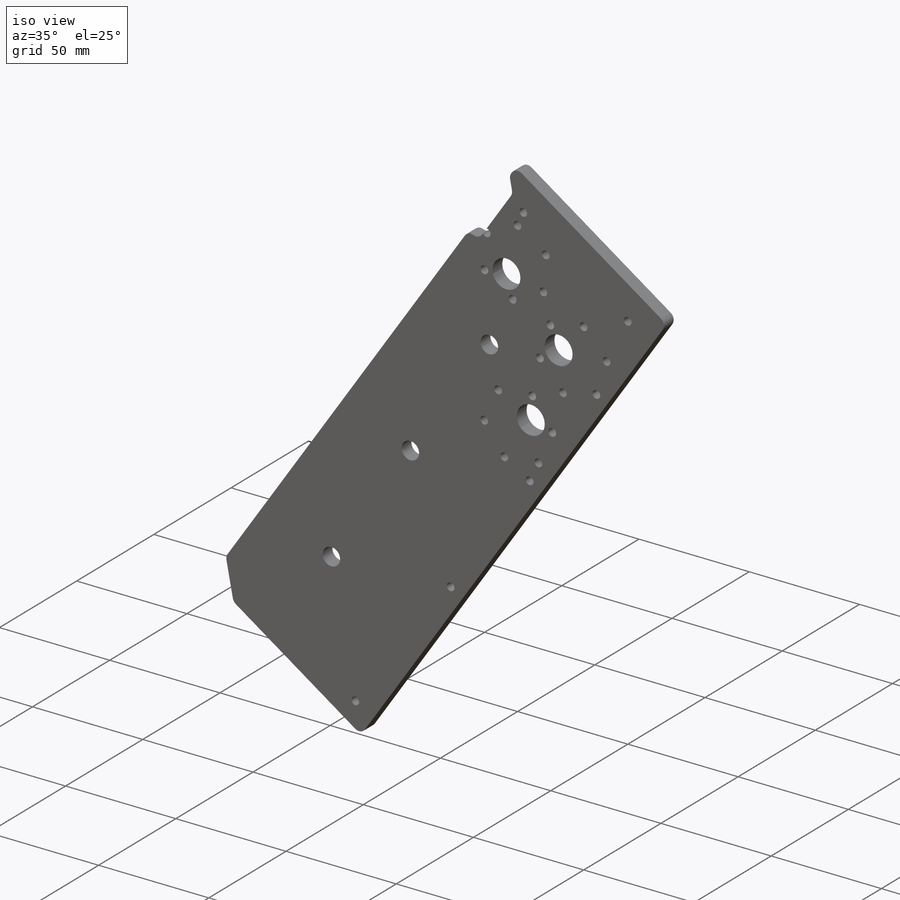
[diagram: iso view]
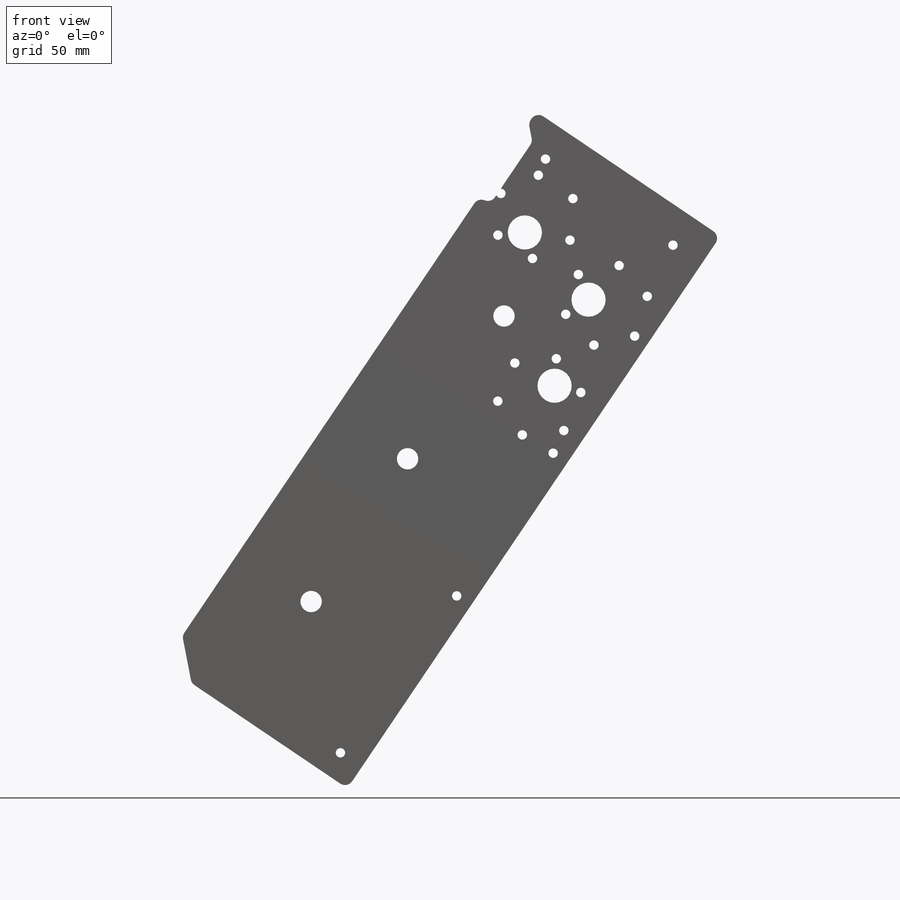
[diagram: front view]
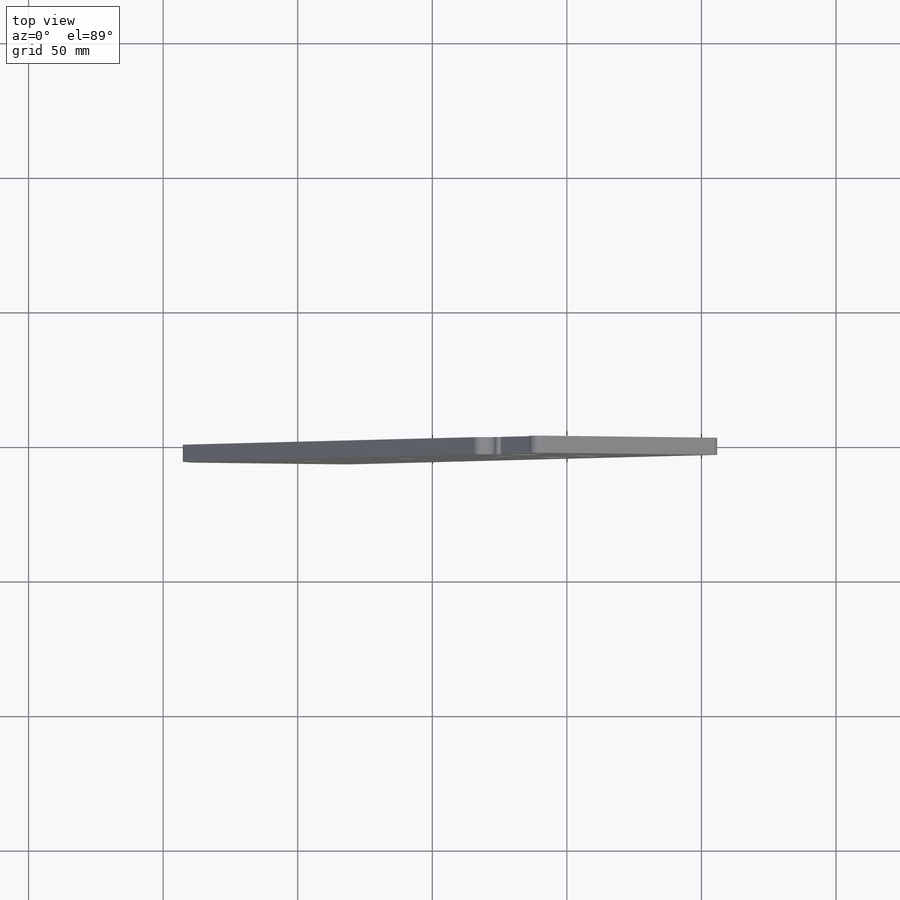
[diagram: top view]
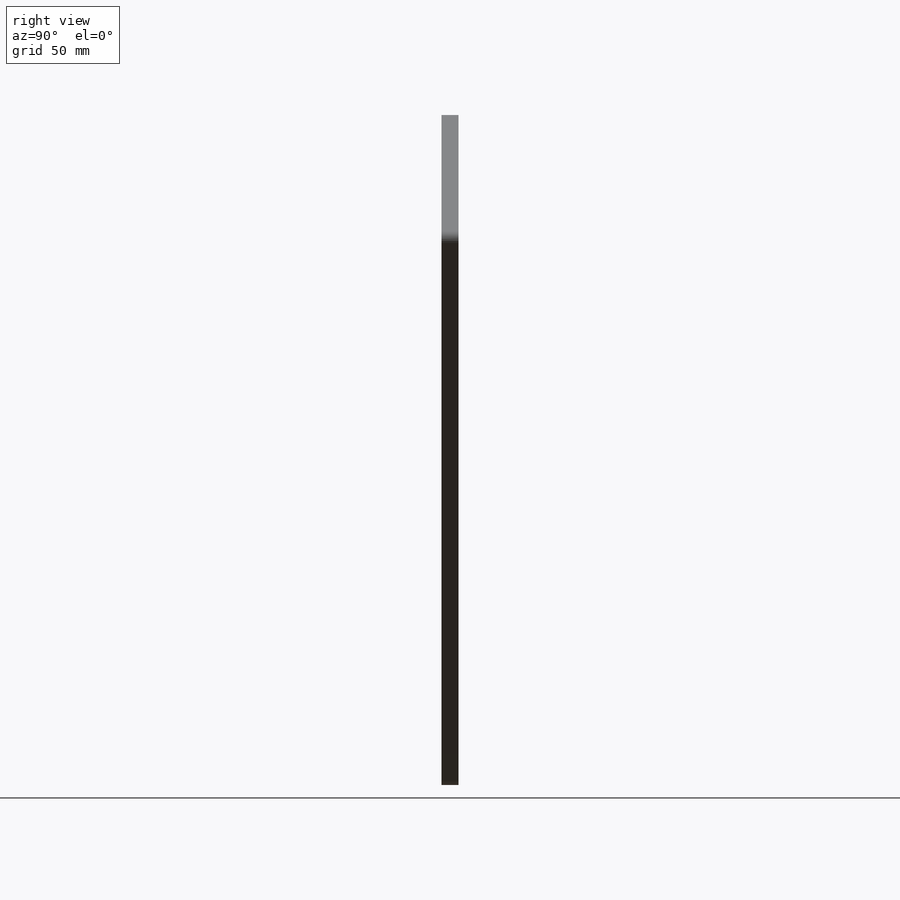
[diagram: right view]
SOLIDWORKS PART (.sldprt)
format: sldprt  version: not decoded by parser v0  size: 587,776 bytes
history: native  units: mm
features: sketch x15, cut_extrude x10, extrude x3, fillet x2, material x1, pattern_linear x1 (+13 scaffold rows collapsed)
feature tree (45):
  scaffold x13  (default folders/planes/origin — collapsed)
  material  "Material <not specified>"
  sketch  "Sketch1"  dims[c1.D1=63.5mm c1.D4=63.5mm c1.D24=101.6mm c1.D2=25.4mm c1.D3=35.56mm c2.D4=25.4mm c2.D2=25.4mm c2.D5=66.04mm c2.D6=~45.086517mm c3.D6=45.0deg c3.D7=50.8mm c3.D8=71.12mm c3.D9=~47.828965mm c4.D9=45.0deg c4.D10=10.16mm c4.D11=17.526mm c4.D4=25.4mm c5.D10=~18.829086mm c6.D10=45.0deg c6.D12=~29.975566mm c7.D12=45.0deg c7.D13=~35.177221mm c8.D13=22.5deg c8.D14=~56.394154mm c9.D14=22.5deg c9.D15=66.04mm c10.D15=22.5deg c10.D11=27.94mm c10.D16=25.4mm c10.D17=45.72mm c10.D18=55.88mm c10.D19=66.04mm c10.D20=~28.066117mm c11.D20=22.5deg c11.D21=30.48mm c11.D10=~17.960512mm c12.D10=45.0deg c12.D22=63.5mm c12.D23=63.5mm c13.D22=63.5mm c13.D23=63.5mm c13.D25=101.6mm c13.D26=~76.508496mm]
  sketch  "Sketch6"  dims[c1.D1=57.15mm c1.D2=101.6mm c1.D3=63.5mm c1.D4=63.5mm c1.D5=76.2mm c1.D6=101.6mm c1.D7=209.55mm c2.D5=15.875mm]
  extrude  "Boss-Extrude2"  Depth=6.35mm
  sketch  "Sketch8"  dims[c1.D1=82.55mm c1.D2=12.7mm c1.D3=12.7mm c1.D4=~15.927769mm c2.D4=45.0deg c2.D5=~15.325103mm c3.D5=45.0deg]
  cut_extrude  "Cut-Extrude1"  [1 undecoded]
  sketch  "Sketch9"
  extrude  "Boss-Extrude3"  [1 undecoded]
  sketch  "Sketch10"  dims[c1.D1=7.9375mm c1.D2=50.0mm c1.D3=50.0mm c1.D4=128.0mm c1.D5=64.0mm c2.D2=50.0mm]
  cut_extrude  "Cut-Extrude2"  [1 undecoded]
  sketch  "Sketch11"  dims[D1=9.0mm]
  cut_extrude  "Cut-Extrude4"  [1 undecoded]
  sketch  "Sketch12"  dims[D1=82.55mm D2=38.1mm]
  extrude  "Boss-Extrude4"  [1 undecoded]
  sketch  "Sketch13"  dims[D1=3.5mm D2=6.35mm]
  cut_extrude  "Cut-Extrude5"  [1 undecoded]
  pattern_linear  "LPattern1"  Count1=2 Count2=1 Spacing1=64mm Spacing2=2.54mm
  sketch  "Sketch14"  dims[D1=5.08mm D2=12.7mm]
  sketch  "Sketch15"  dims[D1=9.525mm D2=9.525mm D3=9.525mm D4=9.525mm D5=9.525mm D6=9.525mm]
  cut_extrude  "Cut-Extrude7"  [1 undecoded]
  sketch  "Sketch16"  dims[D1=12.7mm D2=12.7mm D3=12.7mm D4=12.7mm]
  cut_extrude  "Cut-Extrude8"  [1 undecoded]
  sketch  "Sketch17"  dims[D1=31.75mm]
  cut_extrude  "Cut-Extrude9"  [1 undecoded]
  sketch  "Sketch18"  dims[c1.D6=37.0mm c1.D8=3.5mm c1.D9=12.7mm c1.D1=~32.815059mm c2.D1=45.0deg c2.D2=~32.215863mm c3.D2=65.0deg c3.D3=~32.215863mm c4.D3=65.0deg c4.D4=32.0mm c4.D5=7.0mm c4.D7=31.0mm]
  cut_extrude  "Cut-Extrude10"  [1 undecoded]
  sketch  "Sketch19"
  cut_extrude  "Cut-Extrude11"  [1 undecoded]
  sketch  "Sketch20"  dims[c1.D1=~9.319348mm c2.D1=45.0deg c2.D2=~9.673748mm c3.D2=90.0deg c3.D3=5.08mm c3.D4=5.08mm c3.D5=38.1mm]
  cut_extrude  "Cut-Extrude12"  [1 undecoded]
  fillet  "Fillet1"  Radius=3.175mm
  fillet  "Fillet2"  Radius=3.175mm
decode coverage: 17 of 31 modeling features carry decoded parameters
note: ~ marks probable driven/reference dimensions
note: 12 parameter values undecoded
summary: no parameter record found for 12 features
note: suppression state not decoded; provenance and decode notes live in map.json
